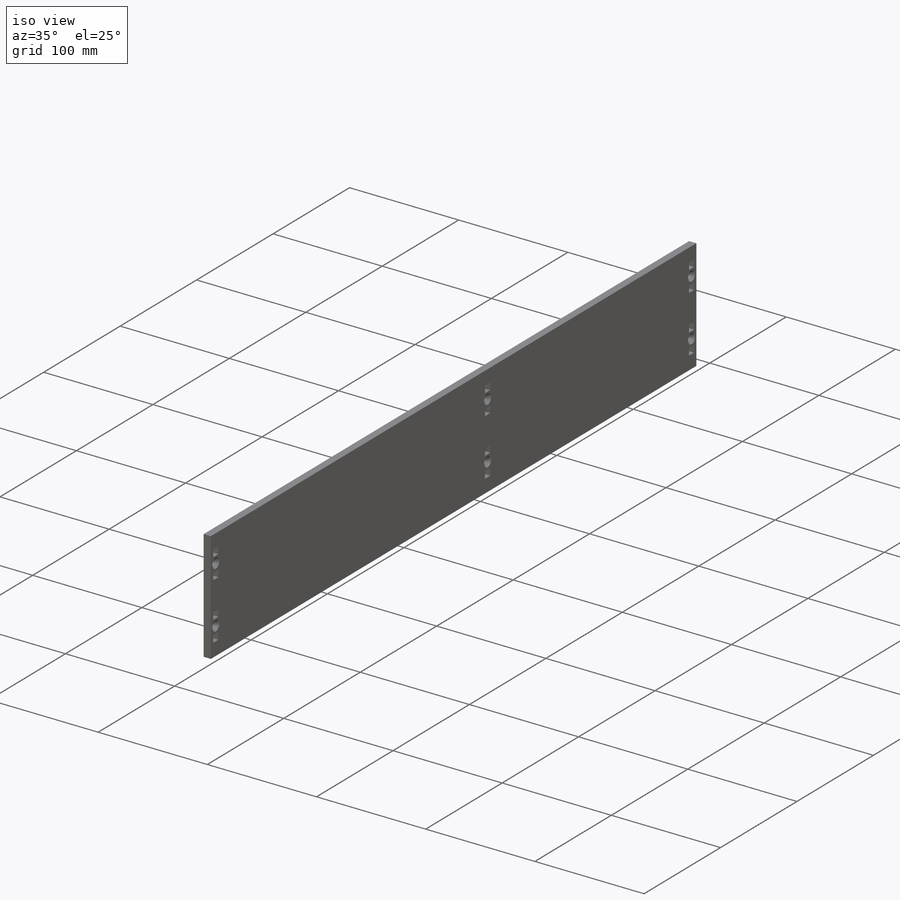
[diagram: iso view]
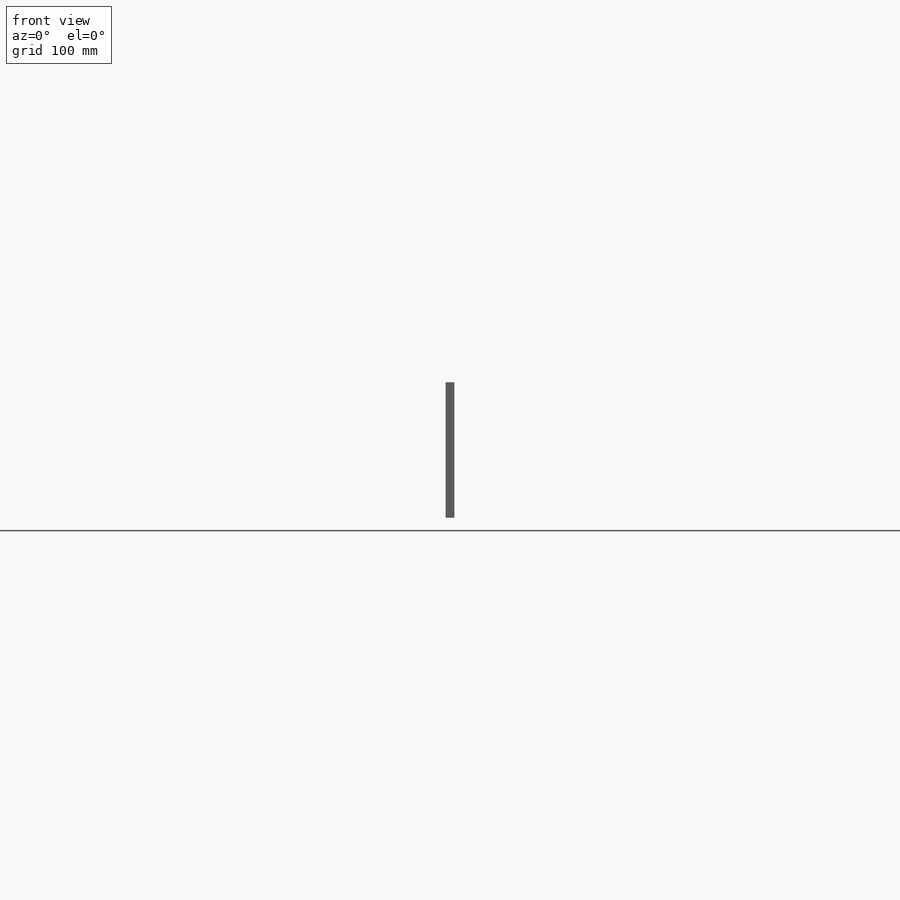
[diagram: front view]
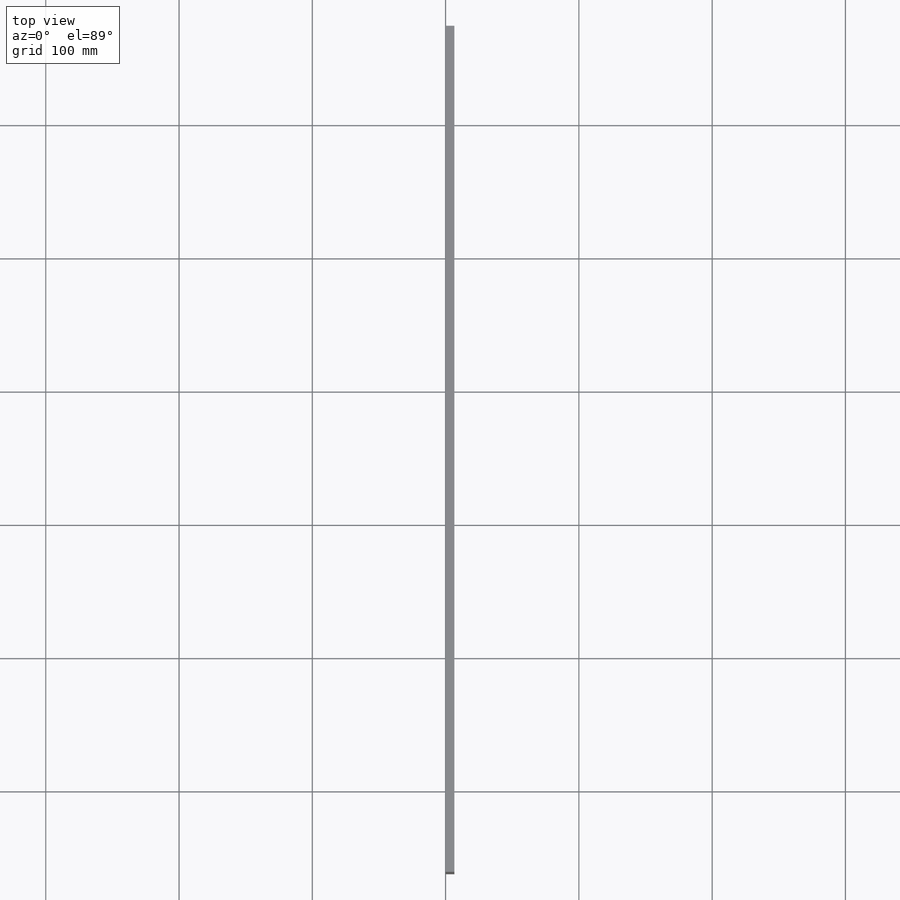
[diagram: top view]
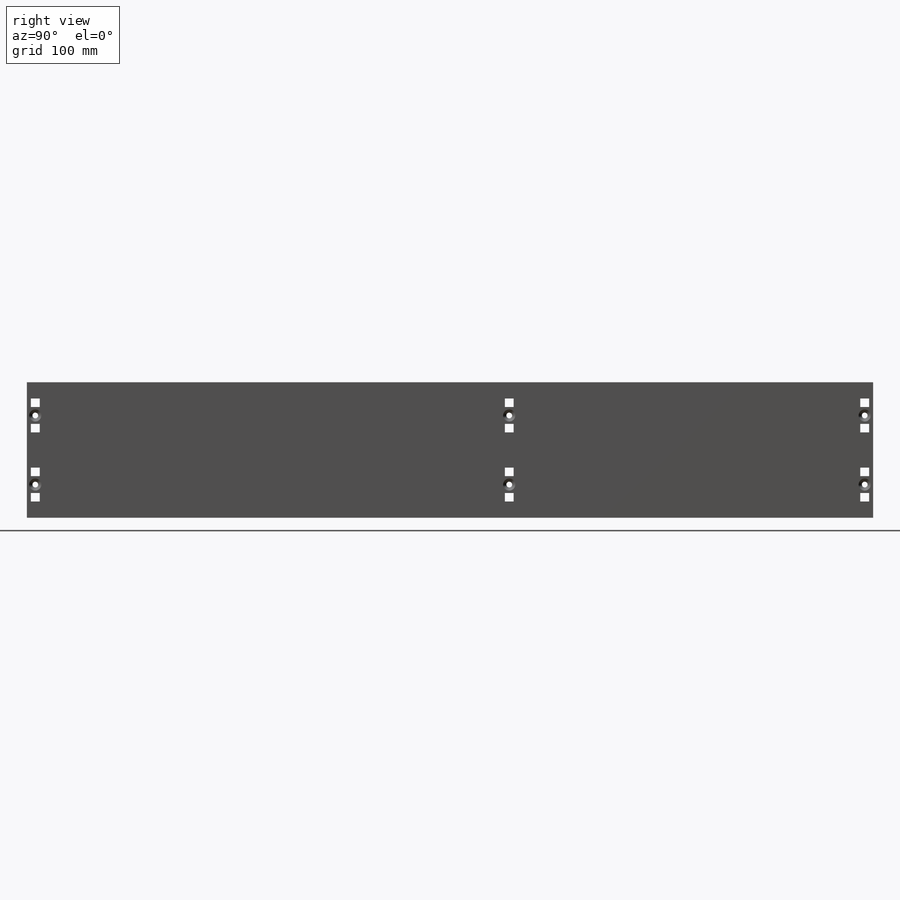
[diagram: right view]
SOLIDWORKS PART (.sldprt)
format: sldprt  version: not decoded by parser v0  size: 463,360 bytes
history: native  units: mm
features: sketch x8, material x1, extrude x1, hole x1 (+12 scaffold rows collapsed)
feature tree (23):
  scaffold x12  (default folders/planes/origin — collapsed)
  material  "Acrylic (Blue)"
  sketch  "Sketch1"  dims[D1=4.3053mm D2=6.35mm D3=6.604mm D4=12.7mm]
  sketch  "BOLT_HOLE-8"
  sketch  "BOLT_HOLE-9"
  sketch  "BOLT_HOLE-10"
  sketch  "BOLT_HOLE-11"
  sketch  "BOLT_HOLE-12"  dims[c1.D1=647.7mm c1.D2=101.6mm c1.D3=266.7mm c1.D4=51.8414mm c2.D3=266.7mm c2.D5=12.7mm c2.D1=266.7mm c3.D5=12.7mm c3.D6=12.7mm c3.D7=~77.345036mm c3.D1=355.6mm c3.D2=101.6mm c3.D3=51.8414mm c3.D4=6.35mm c4.D5=266.7mm]
  extrude  "Boss-Extrude1"  Depth=6.604mm
  hole  "CSK for #8 Flat Head Socket Cap Screw1"  Diameter=4.3053mm Depth=6.604mm
  sketch  "Sketch3"
  sketch  "Sketch2"  dims[hole-wizard template sketch: 60 standard entries collapsed; hole parameters above]
decode coverage: 5 of 10 modeling features carry decoded parameters
note: ~ marks probable driven/reference dimensions
note: suppression state not decoded; provenance and decode notes live in map.json
